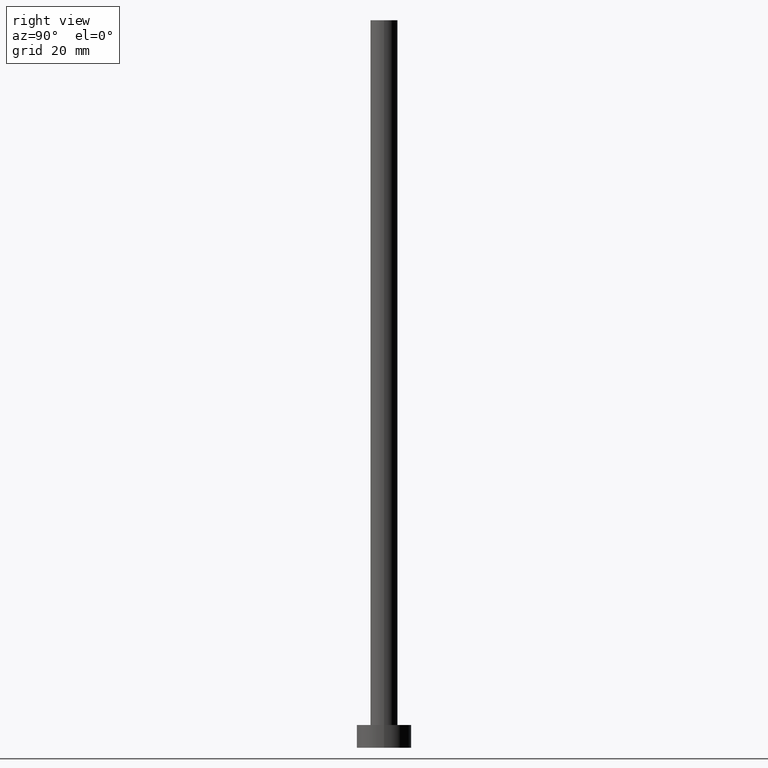
[diagram: clean part render]
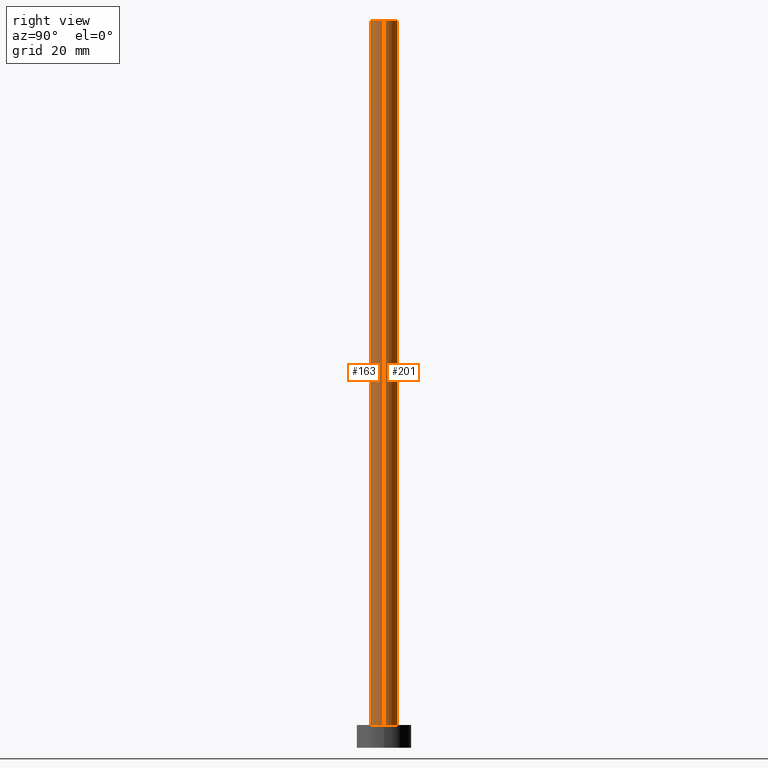
[diagram: same view with one multi-face feature highlighted, each face labeled with its STEP entity id]
A machine part, right view. The highlighted faces form ONE feature: a constant-radius fillet chain: 2 tangent blend faces with common blend radius 3 mm. The faces share edges in the B-rep.
Their STEP definitions:
[1] entity #201 (Cylinder):
#9 = CARTESIAN_POINT ( 'NONE',  ( 3.000000000000000444, 3.673940397442060361E-16, 160.0000000000000000 ) ) ;
#10 = CARTESIAN_POINT ( 'NONE',  ( -3.000000000000000444, 0.000000000000000000, 160.0000000000000000 ) ) ;
#13 = ORIENTED_EDGE ( 'NONE', *, *, #247, .T. ) ;
#14 = VECTOR ( 'NONE', #98, 1000.000000000000000 ) ;
#26 = DIRECTION ( 'NONE',  ( 0.000000000000000000, 0.000000000000000000, 1.000000000000000000 ) ) ;
#30 = DIRECTION ( 'NONE',  ( 1.000000000000000000, 0.000000000000000000, 0.000000000000000000 ) ) ;
#34 = CARTESIAN_POINT ( 'NONE',  ( -3.000000000000000444, 0.000000000000000000, 160.0000000000000000 ) ) ;
#36 = CARTESIAN_POINT ( 'NONE',  ( 3.000000000000000444, 3.673940397442060361E-16, 5.000000000000000000 ) ) ;
#40 = ORIENTED_EDGE ( 'NONE', *, *, #110, .F. ) ;
#43 = VERTEX_POINT ( 'NONE', #140 ) ;
#48 = CYLINDRICAL_SURFACE ( 'NONE', #178, 3.000000000000000444 ) ;
#61 = EDGE_LOOP ( 'NONE', ( #161, #13, #66, #40 ) ) ;
#64 = VERTEX_POINT ( 'NONE', #10 ) ;
#66 = ORIENTED_EDGE ( 'NONE', *, *, #71, .T. ) ;
#71 = EDGE_CURVE ( 'NONE', #87, #43, #89, .T. ) ;
#74 = DIRECTION ( 'NONE',  ( 1.000000000000000000, 0.000000000000000000, 0.000000000000000000 ) ) ;
#77 = DIRECTION ( 'NONE',  ( -0.000000000000000000, -0.000000000000000000, -1.000000000000000000 ) ) ;
#78 = LINE ( 'NONE', #34, #122 ) ;
#79 = CARTESIAN_POINT ( 'NONE',  ( 0.000000000000000000, 0.000000000000000000, 160.0000000000000000 ) ) ;
#87 = VERTEX_POINT ( 'NONE', #36 ) ;
#89 = CIRCLE ( 'NONE', #154, 3.000000000000000444 ) ;
#94 = CARTESIAN_POINT ( 'NONE',  ( 3.000000000000000444, 3.673940397442060361E-16, 160.0000000000000000 ) ) ;
#98 = DIRECTION ( 'NONE',  ( -0.000000000000000000, -0.000000000000000000, -1.000000000000000000 ) ) ;
#101 = AXIS2_PLACEMENT_3D ( 'NONE', #79, #26, #74 ) ;
#110 = EDGE_CURVE ( 'NONE', #64, #43, #78, .T. ) ;
#122 = VECTOR ( 'NONE', #248, 1000.000000000000000 ) ;
#136 = DIRECTION ( 'NONE',  ( -1.000000000000000000, 0.000000000000000000, 0.000000000000000000 ) ) ;
#140 = CARTESIAN_POINT ( 'NONE',  ( -3.000000000000000444, 0.000000000000000000, 5.000000000000000000 ) ) ;
#154 = AXIS2_PLACEMENT_3D ( 'NONE', #231, #194, #30 ) ;
#161 = ORIENTED_EDGE ( 'NONE', *, *, #186, .F. ) ;
#162 = VERTEX_POINT ( 'NONE', #94 ) ;
#178 = AXIS2_PLACEMENT_3D ( 'NONE', #188, #77, #136 ) ;
#186 = EDGE_CURVE ( 'NONE', #162, #64, #252, .T. ) ;
#188 = CARTESIAN_POINT ( 'NONE',  ( 0.000000000000000000, 0.000000000000000000, 160.0000000000000000 ) ) ;
#191 = LINE ( 'NONE', #9, #14 ) ;
#194 = DIRECTION ( 'NONE',  ( 0.000000000000000000, 0.000000000000000000, 1.000000000000000000 ) ) ;
#201 = ADVANCED_FACE ( 'NONE', ( #224 ), #48, .T. ) ;
#224 = FACE_OUTER_BOUND ( 'NONE', #61, .T. ) ;
#231 = CARTESIAN_POINT ( 'NONE',  ( 0.000000000000000000, 0.000000000000000000, 5.000000000000000000 ) ) ;
#247 = EDGE_CURVE ( 'NONE', #162, #87, #191, .T. ) ;
#248 = DIRECTION ( 'NONE',  ( -0.000000000000000000, -0.000000000000000000, -1.000000000000000000 ) ) ;
#252 = CIRCLE ( 'NONE', #101, 3.000000000000000444 ) ;
[2] entity #163 (Cylinder):
#2 = EDGE_LOOP ( 'NONE', ( #146, #197, #84, #180 ) ) ;
#9 = CARTESIAN_POINT ( 'NONE',  ( 3.000000000000000444, 3.673940397442060361E-16, 160.0000000000000000 ) ) ;
#10 = CARTESIAN_POINT ( 'NONE',  ( -3.000000000000000444, 0.000000000000000000, 160.0000000000000000 ) ) ;
#11 = DIRECTION ( 'NONE',  ( -1.000000000000000000, 0.000000000000000000, 0.000000000000000000 ) ) ;
#12 = DIRECTION ( 'NONE',  ( 1.000000000000000000, 0.000000000000000000, 0.000000000000000000 ) ) ;
#14 = VECTOR ( 'NONE', #98, 1000.000000000000000 ) ;
#28 = CYLINDRICAL_SURFACE ( 'NONE', #85, 3.000000000000000444 ) ;
#34 = CARTESIAN_POINT ( 'NONE',  ( -3.000000000000000444, 0.000000000000000000, 160.0000000000000000 ) ) ;
#36 = CARTESIAN_POINT ( 'NONE',  ( 3.000000000000000444, 3.673940397442060361E-16, 5.000000000000000000 ) ) ;
#43 = VERTEX_POINT ( 'NONE', #140 ) ;
#49 = AXIS2_PLACEMENT_3D ( 'NONE', #119, #253, #12 ) ;
#64 = VERTEX_POINT ( 'NONE', #10 ) ;
#78 = LINE ( 'NONE', #34, #122 ) ;
#81 = DIRECTION ( 'NONE',  ( 1.000000000000000000, 0.000000000000000000, 0.000000000000000000 ) ) ;
#84 = ORIENTED_EDGE ( 'NONE', *, *, #110, .T. ) ;
#85 = AXIS2_PLACEMENT_3D ( 'NONE', #153, #208, #11 ) ;
#87 = VERTEX_POINT ( 'NONE', #36 ) ;
#94 = CARTESIAN_POINT ( 'NONE',  ( 3.000000000000000444, 3.673940397442060361E-16, 160.0000000000000000 ) ) ;
#98 = DIRECTION ( 'NONE',  ( -0.000000000000000000, -0.000000000000000000, -1.000000000000000000 ) ) ;
#100 = CARTESIAN_POINT ( 'NONE',  ( 0.000000000000000000, 0.000000000000000000, 160.0000000000000000 ) ) ;
#110 = EDGE_CURVE ( 'NONE', #64, #43, #78, .T. ) ;
#119 = CARTESIAN_POINT ( 'NONE',  ( 0.000000000000000000, 0.000000000000000000, 5.000000000000000000 ) ) ;
#121 = EDGE_CURVE ( 'NONE', #43, #87, #157, .T. ) ;
#122 = VECTOR ( 'NONE', #248, 1000.000000000000000 ) ;
#137 = EDGE_CURVE ( 'NONE', #64, #162, #241, .T. ) ;
#140 = CARTESIAN_POINT ( 'NONE',  ( -3.000000000000000444, 0.000000000000000000, 5.000000000000000000 ) ) ;
#146 = ORIENTED_EDGE ( 'NONE', *, *, #247, .F. ) ;
#153 = CARTESIAN_POINT ( 'NONE',  ( 0.000000000000000000, 0.000000000000000000, 160.0000000000000000 ) ) ;
#157 = CIRCLE ( 'NONE', #49, 3.000000000000000444 ) ;
#162 = VERTEX_POINT ( 'NONE', #94 ) ;
#163 = ADVANCED_FACE ( 'NONE', ( #227 ), #28, .T. ) ;
#180 = ORIENTED_EDGE ( 'NONE', *, *, #121, .T. ) ;
#191 = LINE ( 'NONE', #9, #14 ) ;
#197 = ORIENTED_EDGE ( 'NONE', *, *, #137, .F. ) ;
#204 = AXIS2_PLACEMENT_3D ( 'NONE', #100, #251, #81 ) ;
#208 = DIRECTION ( 'NONE',  ( -0.000000000000000000, -0.000000000000000000, -1.000000000000000000 ) ) ;
#227 = FACE_OUTER_BOUND ( 'NONE', #2, .T. ) ;
#241 = CIRCLE ( 'NONE', #204, 3.000000000000000444 ) ;
#247 = EDGE_CURVE ( 'NONE', #162, #87, #191, .T. ) ;
#248 = DIRECTION ( 'NONE',  ( -0.000000000000000000, -0.000000000000000000, -1.000000000000000000 ) ) ;
#251 = DIRECTION ( 'NONE',  ( 0.000000000000000000, 0.000000000000000000, 1.000000000000000000 ) ) ;
#253 = DIRECTION ( 'NONE',  ( 0.000000000000000000, 0.000000000000000000, 1.000000000000000000 ) ) ;